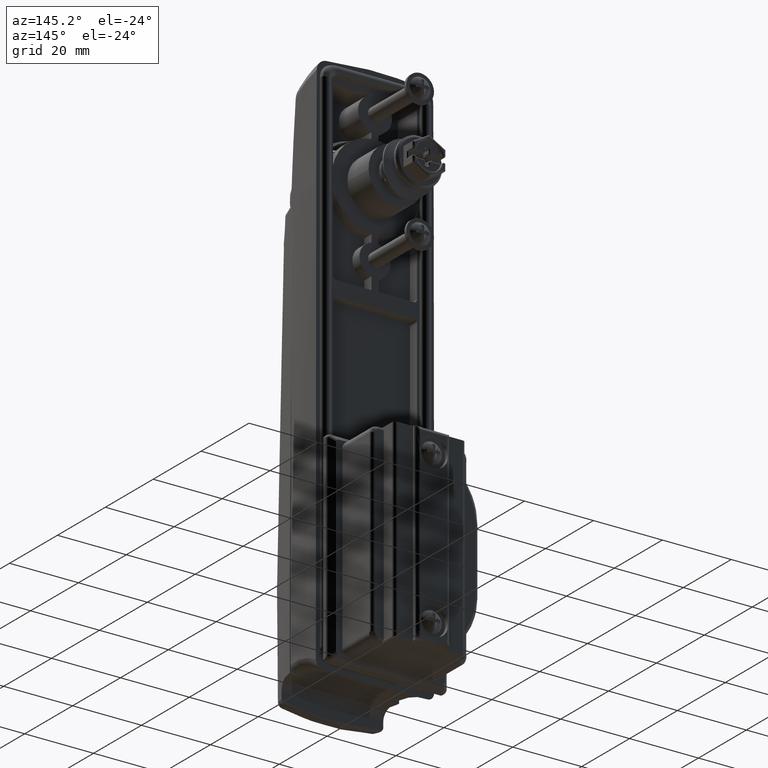
[diagram: clean part render]
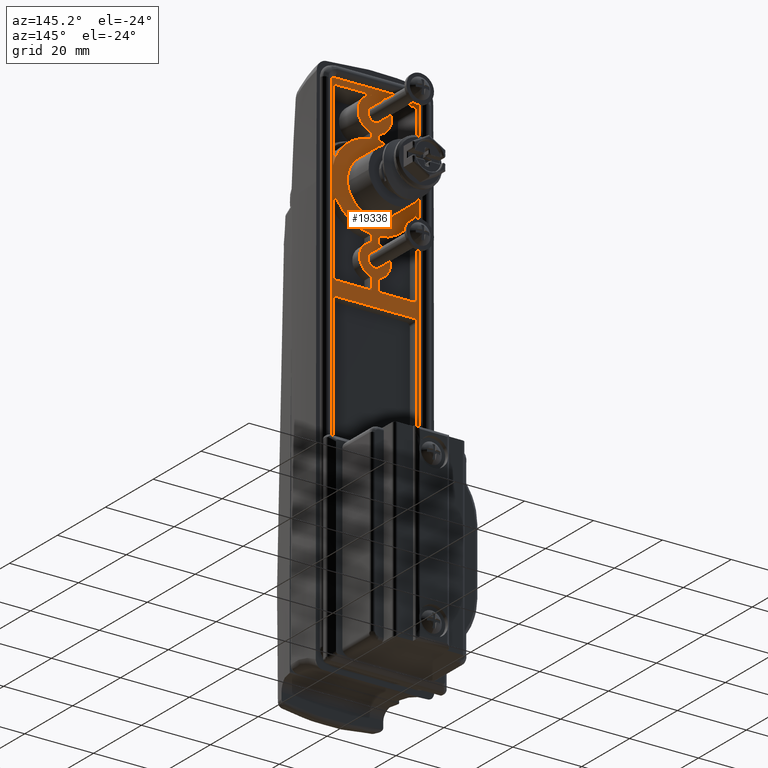
[diagram: same view with one face highlighted and labeled with its STEP entity id]
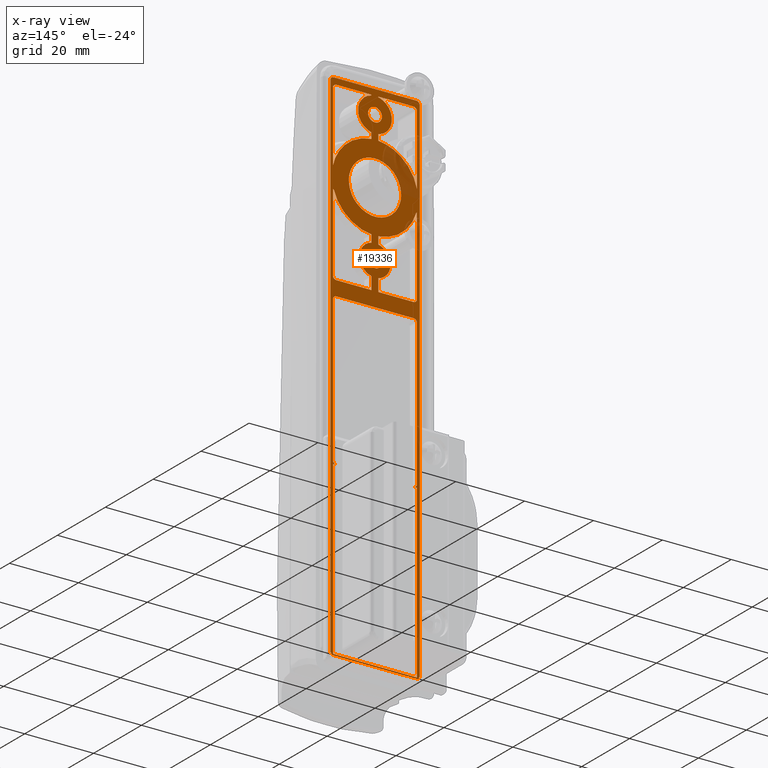
[diagram: x-ray of the same camera — body ghosted, the highlighted face saturated]
A machine part, auxiliary view. The second image highlights one B-rep face of the part: STEP entity #19336.
The next image is the same camera in x-ray: the body ghosted, the highlighted face saturated — about 18% of this face is hidden behind the body in this view.
In plain terms, the highlighted face is a freeform B-spline surface patch.
Its self-contained STEP definition (entity closure, byte-faithful):
#11454=CARTESIAN_POINT('',(3.747003E-016,5.326909944000573,5.420703870209787));
#11455=VERTEX_POINT('',#11454);
#11461=CARTESIAN_POINT('',(0.0,-7.600000000000000,0.0));
#11462=VERTEX_POINT('',#11461);
#11463=CARTESIAN_POINT('',(3.747003E-016,5.326909944000573,5.420703870209787));
#11464=CARTESIAN_POINT('',(0.0,3.109241710582899,7.600000000000001));
#11465=CARTESIAN_POINT('',(0.0,0.0,7.600000000000000));
#11466=CARTESIAN_POINT('',(0.0,-7.600000000000000,7.600000000000000));
#11467=CARTESIAN_POINT('',(0.0,-7.600000000000000,0.0));
#11475=(BOUNDED_CURVE()B_SPLINE_CURVE(2,(#11463,#11464,#11465,#11466,#11467),.UNSPECIFIED.,.F.,.U.)B_SPLINE_CURVE_WITH_KNOTS((3,2,3),(0.126316770525920,0.250000000000000,0.500000000000000),.UNSPECIFIED.)CURVE()GEOMETRIC_REPRESENTATION_ITEM()RATIONAL_B_SPLINE_CURVE((0.853569641570771,0.855096083224375,1.0,0.707106781186547,1.0))REPRESENTATION_ITEM(''));
#11476=EDGE_CURVE('',#11455,#11462,#11475,.T.);
#11478=CARTESIAN_POINT('',(3.747003E-016,-5.326909944000574,-5.420703870209785));
#11479=VERTEX_POINT('',#11478);
#11480=CARTESIAN_POINT('',(0.0,-7.600000000000000,0.0));
#11481=CARTESIAN_POINT('',(0.0,-7.600000000000000,-3.186944876390533));
#11482=CARTESIAN_POINT('',(0.0,-5.326909944000596,-5.420703870209807));
#11490=(BOUNDED_CURVE()B_SPLINE_CURVE(2,(#11480,#11481,#11482),.UNSPECIFIED.,.F.,.U.)B_SPLINE_CURVE_WITH_KNOTS((3,3),(0.500000000000000,0.626316770525920),.UNSPECIFIED.)CURVE()GEOMETRIC_REPRESENTATION_ITEM()RATIONAL_B_SPLINE_CURVE((1.0,0.852010697962173,0.853569641570771))REPRESENTATION_ITEM(''));
#11491=EDGE_CURVE('',#11462,#11479,#11490,.T.);
#11567=CARTESIAN_POINT('',(0.0,7.600000000000000,0.0));
#11568=VERTEX_POINT('',#11567);
#11569=CARTESIAN_POINT('',(3.747003E-016,-5.326909944000574,-5.420703870209785));
#11570=CARTESIAN_POINT('',(0.0,-3.109241710582900,-7.600000000000001));
#11571=CARTESIAN_POINT('',(0.0,0.0,-7.600000000000000));
#11572=CARTESIAN_POINT('',(0.0,7.600000000000000,-7.600000000000000));
#11573=CARTESIAN_POINT('',(0.0,7.600000000000000,0.0));
#11581=(BOUNDED_CURVE()B_SPLINE_CURVE(2,(#11569,#11570,#11571,#11572,#11573),.UNSPECIFIED.,.F.,.U.)B_SPLINE_CURVE_WITH_KNOTS((3,2,3),(0.626316770525920,0.750000000000000,1.0),.UNSPECIFIED.)CURVE()GEOMETRIC_REPRESENTATION_ITEM()RATIONAL_B_SPLINE_CURVE((0.853569641570771,0.855096083224375,1.0,0.707106781186547,1.0))REPRESENTATION_ITEM(''));
#11582=EDGE_CURVE('',#11479,#11568,#11581,.T.);
#11584=CARTESIAN_POINT('',(0.0,7.600000000000000,0.0));
#11585=CARTESIAN_POINT('',(0.0,7.599999999999999,3.186944876390533));
#11586=CARTESIAN_POINT('',(0.0,5.326909944000595,5.420703870209807));
#11594=(BOUNDED_CURVE()B_SPLINE_CURVE(2,(#11584,#11585,#11586),.UNSPECIFIED.,.F.,.U.)B_SPLINE_CURVE_WITH_KNOTS((3,3),(0.0,0.126316770525920),.UNSPECIFIED.)CURVE()GEOMETRIC_REPRESENTATION_ITEM()RATIONAL_B_SPLINE_CURVE((1.0,0.852010697962173,0.853569641570771))REPRESENTATION_ITEM(''));
#11595=EDGE_CURVE('',#11568,#11455,#11594,.T.);
#12017=CARTESIAN_POINT('',(0.000000084971916,-1.993834667375058,19.156919095066069));
#12018=VERTEX_POINT('',#12017);
#12024=CARTESIAN_POINT('',(0.000000083740410,0.0,17.000000902451600));
#12025=VERTEX_POINT('',#12024);
#12026=CARTESIAN_POINT('',(0.000000084971917,-1.993834667375059,19.156919095066062));
#12027=CARTESIAN_POINT('',(0.000000084927189,-2.000000000000000,19.078581117049016));
#12028=CARTESIAN_POINT('',(0.000000084882323,-2.0,19.000000902451600));
#12029=CARTESIAN_POINT('',(0.000000083740410,-2.000000000000000,17.000000902451593));
#12030=CARTESIAN_POINT('',(0.000000083740410,0.0,17.000000902451600));
#12038=(BOUNDED_CURVE()B_SPLINE_CURVE(2,(#12026,#12027,#12028,#12029,#12030),.UNSPECIFIED.,.F.,.U.)B_SPLINE_CURVE_WITH_KNOTS((3,2,3),(0.736331300533139,0.750000000000000,1.0),.UNSPECIFIED.)CURVE()GEOMETRIC_REPRESENTATION_ITEM()RATIONAL_B_SPLINE_CURVE((0.969723355963899,0.983986122464629,1.0,0.707106781186548,1.0))REPRESENTATION_ITEM(''));
#12039=EDGE_CURVE('',#12018,#12025,#12038,.T.);
#12041=CARTESIAN_POINT('',(0.000000084792730,1.993834667375058,18.843082709837141));
#12042=VERTEX_POINT('',#12041);
#12043=CARTESIAN_POINT('',(0.000000083740410,0.0,17.000000902451600));
#12044=CARTESIAN_POINT('',(0.000000083740410,1.848780982238623,17.000000902451593));
#12045=CARTESIAN_POINT('',(0.000000084792730,1.993834667375059,18.843082709837148));
#12053=(BOUNDED_CURVE()B_SPLINE_CURVE(2,(#12043,#12044,#12045),.UNSPECIFIED.,.F.,.U.)B_SPLINE_CURVE_WITH_KNOTS((3,3),(0.0,0.236331300533139),.UNSPECIFIED.)CURVE()GEOMETRIC_REPRESENTATION_ITEM()RATIONAL_B_SPLINE_CURVE((1.0,0.723120658721918,0.969723355963900))REPRESENTATION_ITEM(''));
#12054=EDGE_CURVE('',#12025,#12042,#12053,.T.);
#12100=CARTESIAN_POINT('',(0.000000086024237,0.0,21.000000902451600));
#12101=VERTEX_POINT('',#12100);
#12102=CARTESIAN_POINT('',(0.000000084792730,1.993834667375058,18.843082709837137));
#12103=CARTESIAN_POINT('',(0.000000084837457,2.000000000000000,18.921420687854187));
#12104=CARTESIAN_POINT('',(0.000000084882323,2.0,19.000000902451600));
#12105=CARTESIAN_POINT('',(0.000000086024237,2.000000000000000,21.000000902451607));
#12106=CARTESIAN_POINT('',(0.000000086024237,0.0,21.000000902451600));
#12114=(BOUNDED_CURVE()B_SPLINE_CURVE(2,(#12102,#12103,#12104,#12105,#12106),.UNSPECIFIED.,.F.,.U.)B_SPLINE_CURVE_WITH_KNOTS((3,2,3),(0.236331300533139,0.250000000000000,0.500000000000000),.UNSPECIFIED.)CURVE()GEOMETRIC_REPRESENTATION_ITEM()RATIONAL_B_SPLINE_CURVE((0.969723355963900,0.983986122464629,1.0,0.707106781186548,1.0))REPRESENTATION_ITEM(''));
#12115=EDGE_CURVE('',#12042,#12101,#12114,.T.);
#12117=CARTESIAN_POINT('',(0.000000086024237,0.0,21.000000902451600));
#12118=CARTESIAN_POINT('',(0.000000086024237,-1.848780982238621,21.000000902451610));
#12119=CARTESIAN_POINT('',(0.000000084971917,-1.993834667375058,19.156919095066069));
#12127=(BOUNDED_CURVE()B_SPLINE_CURVE(2,(#12117,#12118,#12119),.UNSPECIFIED.,.F.,.U.)B_SPLINE_CURVE_WITH_KNOTS((3,3),(0.500000000000000,0.736331300533139),.UNSPECIFIED.)CURVE()GEOMETRIC_REPRESENTATION_ITEM()RATIONAL_B_SPLINE_CURVE((1.0,0.723120658721918,0.969723355963899))REPRESENTATION_ITEM(''));
#12128=EDGE_CURVE('',#12101,#12018,#12127,.T.);
#12199=CARTESIAN_POINT('',(0.000000063275495,-1.993834667375058,-18.843080904933991));
#12200=VERTEX_POINT('',#12199);
#12206=CARTESIAN_POINT('',(0.000000062043987,0.0,-20.999999097548450));
#12207=VERTEX_POINT('',#12206);
#12208=CARTESIAN_POINT('',(0.000000063275494,-1.993834667375059,-18.843080904933991));
#12209=CARTESIAN_POINT('',(0.000000063230767,-2.0,-18.921418882951034));
#12210=CARTESIAN_POINT('',(0.000000063185901,-2.0,-18.999999097548450));
#12211=CARTESIAN_POINT('',(0.000000062043987,-2.000000000000000,-20.999999097548450));
#12212=CARTESIAN_POINT('',(0.000000062043987,0.0,-20.999999097548450));
#12220=(BOUNDED_CURVE()B_SPLINE_CURVE(2,(#12208,#12209,#12210,#12211,#12212),.UNSPECIFIED.,.F.,.U.)B_SPLINE_CURVE_WITH_KNOTS((3,2,3),(0.736331300533139,0.750000000000000,1.0),.UNSPECIFIED.)CURVE()GEOMETRIC_REPRESENTATION_ITEM()RATIONAL_B_SPLINE_CURVE((0.969723355963899,0.983986122464629,1.0,0.707106781186548,1.0))REPRESENTATION_ITEM(''));
#12221=EDGE_CURVE('',#12200,#12207,#12220,.T.);
#12223=CARTESIAN_POINT('',(0.000000063096307,1.993834667375058,-19.156917290162919));
#12224=VERTEX_POINT('',#12223);
#12225=CARTESIAN_POINT('',(0.000000062043987,0.0,-20.999999097548450));
#12226=CARTESIAN_POINT('',(0.000000062043987,1.848780982238621,-20.999999097548454));
#12227=CARTESIAN_POINT('',(0.000000063096307,1.993834667375058,-19.156917290162909));
#12235=(BOUNDED_CURVE()B_SPLINE_CURVE(2,(#12225,#12226,#12227),.UNSPECIFIED.,.F.,.U.)B_SPLINE_CURVE_WITH_KNOTS((3,3),(0.0,0.236331300533139),.UNSPECIFIED.)CURVE()GEOMETRIC_REPRESENTATION_ITEM()RATIONAL_B_SPLINE_CURVE((1.0,0.723120658721918,0.969723355963899))REPRESENTATION_ITEM(''));
#12236=EDGE_CURVE('',#12207,#12224,#12235,.T.);
#12282=CARTESIAN_POINT('',(0.000000064327815,0.0,-16.999999097548450));
#12283=VERTEX_POINT('',#12282);
#12284=CARTESIAN_POINT('',(0.000000063096307,1.993834667375058,-19.156917290162909));
#12285=CARTESIAN_POINT('',(0.000000063141035,2.000000000000000,-19.078579312145862));
#12286=CARTESIAN_POINT('',(0.000000063185901,2.0,-18.999999097548450));
#12287=CARTESIAN_POINT('',(0.000000064327815,2.000000000000000,-16.999999097548454));
#12288=CARTESIAN_POINT('',(0.000000064327815,0.0,-16.999999097548450));
#12296=(BOUNDED_CURVE()B_SPLINE_CURVE(2,(#12284,#12285,#12286,#12287,#12288),.UNSPECIFIED.,.F.,.U.)B_SPLINE_CURVE_WITH_KNOTS((3,2,3),(0.236331300533139,0.250000000000000,0.500000000000000),.UNSPECIFIED.)CURVE()GEOMETRIC_REPRESENTATION_ITEM()RATIONAL_B_SPLINE_CURVE((0.969723355963899,0.983986122464629,1.0,0.707106781186548,1.0))REPRESENTATION_ITEM(''));
#12297=EDGE_CURVE('',#12224,#12283,#12296,.T.);
#12299=CARTESIAN_POINT('',(0.000000064327815,0.0,-16.999999097548450));
#12300=CARTESIAN_POINT('',(0.000000064327815,-1.848780982238621,-16.999999097548457));
#12301=CARTESIAN_POINT('',(0.000000063275494,-1.993834667375058,-18.843080904933988));
#12309=(BOUNDED_CURVE()B_SPLINE_CURVE(2,(#12299,#12300,#12301),.UNSPECIFIED.,.F.,.U.)B_SPLINE_CURVE_WITH_KNOTS((3,3),(0.500000000000000,0.736331300533139),.UNSPECIFIED.)CURVE()GEOMETRIC_REPRESENTATION_ITEM()RATIONAL_B_SPLINE_CURVE((1.0,0.723120658721918,0.969723355963899))REPRESENTATION_ITEM(''));
#12310=EDGE_CURVE('',#12283,#12200,#12309,.T.);
#15890=CARTESIAN_POINT('',(-1.110223E-013,1.000120185797414,24.000003627503851));
#15891=VERTEX_POINT('',#15890);
#15892=CARTESIAN_POINT('',(-1.110223E-013,1.000120185797414,23.800034947185399));
#15893=VERTEX_POINT('',#15892);
#15894=CARTESIAN_POINT('',(-1.110223E-013,1.000120185797414,24.000003627503851));
#15895=CARTESIAN_POINT('',(-1.110223E-013,1.000120185797414,23.800034947185399));
#15896=QUASI_UNIFORM_CURVE('',1,(#15894,#15895),.UNSPECIFIED.,.F.,.U.);
#15897=EDGE_CURVE('',#15891,#15893,#15896,.T.);
#15926=CARTESIAN_POINT('',(-1.110223E-013,11.200120670271421,24.000003877504199));
#15927=VERTEX_POINT('',#15926);
#15928=CARTESIAN_POINT('',(-1.110223E-013,11.200120670271421,24.000003877504199));
#15929=CARTESIAN_POINT('',(-1.110223E-013,1.000120185797414,24.000003627503851));
#15930=QUASI_UNIFORM_CURVE('',1,(#15928,#15929),.UNSPECIFIED.,.F.,.U.);
#15931=EDGE_CURVE('',#15927,#15891,#15930,.T.);
#15963=CARTESIAN_POINT('',(-1.110223E-013,12.200120717768860,23.014896032761349));
#15964=VERTEX_POINT('',#15963);
#15965=CARTESIAN_POINT('',(-1.110223E-013,12.200120717768860,23.014896032761349));
#15966=CARTESIAN_POINT('',(-1.110223E-013,12.184664400456883,23.999318669849789));
#15967=CARTESIAN_POINT('',(-1.110223E-013,11.200120670272190,24.000003878604229));
#15975=(BOUNDED_CURVE()B_SPLINE_CURVE(2,(#15965,#15966,#15967),.UNSPECIFIED.,.F.,.U.)CURVE()GEOMETRIC_REPRESENTATION_ITEM()QUASI_UNIFORM_CURVE()RATIONAL_B_SPLINE_CURVE((1.0,0.712879666211485,1.0))REPRESENTATION_ITEM(''));
#15976=EDGE_CURVE('',#15964,#15927,#15975,.T.);
#16007=CARTESIAN_POINT('',(0.000000087737037,-1.000120185797414,24.000003627503851));
#16008=VERTEX_POINT('',#16007);
#16009=CARTESIAN_POINT('',(-1.110223E-013,-11.200120670272099,24.000003878604002));
#16010=VERTEX_POINT('',#16009);
#16011=CARTESIAN_POINT('',(0.000000087737037,-1.000120185797414,24.000003627503851));
#16012=CARTESIAN_POINT('',(-1.110223E-013,-11.200120670272099,24.000003878604002));
#16013=QUASI_UNIFORM_CURVE('',1,(#16011,#16012),.UNSPECIFIED.,.F.,.U.);
#16014=EDGE_CURVE('',#16008,#16010,#16013,.T.);
#16043=CARTESIAN_POINT('',(-1.110223E-013,-1.000123354566898,23.800034947186351));
#16044=VERTEX_POINT('',#16043);
#16045=CARTESIAN_POINT('',(-1.110223E-013,-1.000123354566898,23.800034947186351));
#16046=CARTESIAN_POINT('',(0.000000087737037,-1.000120185797414,24.000003627503851));
#16047=QUASI_UNIFORM_CURVE('',1,(#16045,#16046),.UNSPECIFIED.,.F.,.U.);
#16048=EDGE_CURVE('',#16044,#16008,#16047,.T.);
#16080=CARTESIAN_POINT('',(-1.110223E-013,-12.200120717768860,23.014896032757449));
#16081=VERTEX_POINT('',#16080);
#16082=CARTESIAN_POINT('',(-1.110223E-013,-11.200120670272099,24.000003878604030));
#16083=CARTESIAN_POINT('',(-1.110223E-013,-12.184664400460424,23.999318669849590));
#16084=CARTESIAN_POINT('',(-1.110223E-013,-12.200120717768870,23.014896032757449));
#16092=(BOUNDED_CURVE()B_SPLINE_CURVE(2,(#16082,#16083,#16084),.UNSPECIFIED.,.F.,.U.)CURVE()GEOMETRIC_REPRESENTATION_ITEM()QUASI_UNIFORM_CURVE()RATIONAL_B_SPLINE_CURVE((1.0,0.712879666210193,1.0))REPRESENTATION_ITEM(''));
#16093=EDGE_CURVE('',#16010,#16081,#16092,.T.);
#16216=CARTESIAN_POINT('',(0.0,-12.200120958050441,-25.999998497368502));
#16217=VERTEX_POINT('',#16216);
#16218=CARTESIAN_POINT('',(0.000000072035722,-12.200120717768860,-3.499997428675895));
#16219=VERTEX_POINT('',#16218);
#16220=CARTESIAN_POINT('',(0.0,-12.200120958050441,-25.999998497368502));
#16221=CARTESIAN_POINT('',(0.000000072035722,-12.200120717768860,-3.499997428675895));
#16222=QUASI_UNIFORM_CURVE('',1,(#16220,#16221),.UNSPECIFIED.,.F.,.U.);
#16223=EDGE_CURVE('',#16217,#16219,#16222,.T.);
#16244=CARTESIAN_POINT('',(0.0,-12.000212616159621,-3.499997428675895));
#16245=VERTEX_POINT('',#16244);
#16246=CARTESIAN_POINT('',(0.000000072035722,-12.200120717768860,-3.499997428675895));
#16247=CARTESIAN_POINT('',(0.0,-12.000212616159621,-3.499997428675895));
#16248=QUASI_UNIFORM_CURVE('',1,(#16246,#16247),.UNSPECIFIED.,.F.,.U.);
#16249=EDGE_CURVE('',#16219,#16245,#16248,.T.);
#16275=CARTESIAN_POINT('',(0.0,-1.000120196623366,-12.460003505695200));
#16276=VERTEX_POINT('',#16275);
#16277=CARTESIAN_POINT('',(0.0,-12.000212616159621,-3.499997428675895));
#16278=CARTESIAN_POINT('',(0.0,-9.587915476922591,-11.770793113107334));
#16279=CARTESIAN_POINT('',(0.0,-1.000120196623366,-12.460003505695189));
#16287=(BOUNDED_CURVE()B_SPLINE_CURVE(2,(#16277,#16278,#16279),.UNSPECIFIED.,.F.,.U.)CURVE()GEOMETRIC_REPRESENTATION_ITEM()QUASI_UNIFORM_CURVE()RATIONAL_B_SPLINE_CURVE((1.0,0.823376659458550,1.0))REPRESENTATION_ITEM(''));
#16288=EDGE_CURVE('',#16245,#16276,#16287,.T.);
#16305=CARTESIAN_POINT('',(0.0,-1.000120185797300,-14.612360766254200));
#16306=VERTEX_POINT('',#16305);
#16307=CARTESIAN_POINT('',(0.0,-1.000120196623366,-12.460003505695200));
#16308=CARTESIAN_POINT('',(0.0,-1.000120185797300,-14.612360766254200));
#16309=QUASI_UNIFORM_CURVE('',1,(#16307,#16308),.UNSPECIFIED.,.F.,.U.);
#16310=EDGE_CURVE('',#16276,#16306,#16309,.T.);
#16340=CARTESIAN_POINT('',(0.0,-1.000120185797408,-23.387480229701598));
#16341=VERTEX_POINT('',#16340);
#16342=CARTESIAN_POINT('',(0.0,-1.000120185797300,-14.612360766254200));
#16343=CARTESIAN_POINT('',(0.0,-1.585098028271931,-14.745000428749581));
#16344=CARTESIAN_POINT('',(0.0,-2.523685752809362,-15.169848363969541));
#16345=CARTESIAN_POINT('',(0.0,-3.446785887762418,-16.048566690599650));
#16346=CARTESIAN_POINT('',(0.0,-3.957124846726660,-16.812391834861341));
#16347=CARTESIAN_POINT('',(0.0,-4.358561295001432,-17.708619404686878));
#16348=CARTESIAN_POINT('',(0.0,-4.534819109924787,-18.683447540593750));
#16349=CARTESIAN_POINT('',(0.0,-4.472589330498501,-19.663497108372582));
#16350=CARTESIAN_POINT('',(0.0,-4.269260710867047,-20.526799477293409));
#16351=CARTESIAN_POINT('',(0.0,-3.847431894676324,-21.418372715446921));
#16352=CARTESIAN_POINT('',(0.0,-3.084610736637999,-22.354529651479460));
#16353=CARTESIAN_POINT('',(0.0,-2.117667814258463,-23.035081034298770));
#16354=CARTESIAN_POINT('',(0.0,-1.338644211141292,-23.310373623834970));
#16355=CARTESIAN_POINT('',(0.0,-1.000120185797408,-23.387480229701598));
#16356=B_SPLINE_CURVE_WITH_KNOTS('',3,(#16342,#16343,#16344,#16345,#16346,#16347,#16348,#16349,#16350,#16351,#16352,#16353,#16354,#16355),.UNSPECIFIED.,.F.,.U.,(4,1,1,1,1,1,1,1,1,1,1,4),(0.000000285138805,1.799206702045868,3.030243605382664,3.787832187280108,4.545373885321881,5.965821425480653,6.723287031334457,7.480896313976809,8.617245572034557,9.658914659867804,11.079338285529049,12.120964346674461),.UNSPECIFIED.);
#16357=EDGE_CURVE('',#16306,#16341,#16356,.T.);
#16374=CARTESIAN_POINT('',(0.0,-1.000120185797300,-26.999998294865900));
#16375=VERTEX_POINT('',#16374);
#16376=CARTESIAN_POINT('',(0.0,-1.000120185797408,-23.387480229701598));
#16377=CARTESIAN_POINT('',(0.0,-1.000120185797300,-26.999998294865900));
#16378=QUASI_UNIFORM_CURVE('',1,(#16376,#16377),.UNSPECIFIED.,.F.,.U.);
#16379=EDGE_CURVE('',#16341,#16375,#16378,.T.);
#16396=CARTESIAN_POINT('',(0.0,-11.200120670271300,-26.999998544866049));
#16397=VERTEX_POINT('',#16396);
#16398=CARTESIAN_POINT('',(0.0,-1.000120185797300,-26.999998294865900));
#16399=CARTESIAN_POINT('',(0.0,-11.200120670271300,-26.999998544866049));
#16400=QUASI_UNIFORM_CURVE('',1,(#16398,#16399),.UNSPECIFIED.,.F.,.U.);
#16401=EDGE_CURVE('',#16375,#16397,#16400,.T.);
#16427=CARTESIAN_POINT('',(0.0,-12.200120958050420,-25.999998497368502));
#16428=CARTESIAN_POINT('',(0.0,-12.200120377959484,-26.999998205056546));
#16429=CARTESIAN_POINT('',(0.0,-11.200120670271440,-26.999998785147540));
#16437=(BOUNDED_CURVE()B_SPLINE_CURVE(2,(#16427,#16428,#16429),.UNSPECIFIED.,.F.,.U.)CURVE()GEOMETRIC_REPRESENTATION_ITEM()QUASI_UNIFORM_CURVE()RATIONAL_B_SPLINE_CURVE((1.0,0.707107191372799,1.0))REPRESENTATION_ITEM(''));
#16438=EDGE_CURVE('',#16217,#16397,#16437,.T.);
#16543=CARTESIAN_POINT('',(0.000000059189193,12.199880441169061,-25.999998497368850));
#16544=VERTEX_POINT('',#16543);
#16545=CARTESIAN_POINT('',(0.0,12.199880441169061,-3.499997678676040));
#16546=VERTEX_POINT('',#16545);
#16547=CARTESIAN_POINT('',(0.000000059189193,12.199880441169061,-25.999998497368850));
#16548=CARTESIAN_POINT('',(0.0,12.199880441169061,-3.499997678676040));
#16549=QUASI_UNIFORM_CURVE('',1,(#16547,#16548),.UNSPECIFIED.,.F.,.U.);
#16550=EDGE_CURVE('',#16544,#16546,#16549,.T.);
#16580=CARTESIAN_POINT('',(0.0,11.199880393671499,-26.999998544866049));
#16581=VERTEX_POINT('',#16580);
#16582=CARTESIAN_POINT('',(0.0,11.199880393671499,-26.999998544866049));
#16583=CARTESIAN_POINT('',(0.0,12.199880101359193,-26.999998205056553));
#16584=CARTESIAN_POINT('',(0.0,12.199880681450621,-25.999998497368988));
#16592=(BOUNDED_CURVE()B_SPLINE_CURVE(2,(#16582,#16583,#16584),.UNSPECIFIED.,.F.,.U.)CURVE()GEOMETRIC_REPRESENTATION_ITEM()QUASI_UNIFORM_CURVE()RATIONAL_B_SPLINE_CURVE((1.0,0.707107191372979,1.0))REPRESENTATION_ITEM(''));
#16593=EDGE_CURVE('',#16581,#16544,#16592,.T.);
#16610=CARTESIAN_POINT('',(0.0,0.999879909197489,-26.999998544866049));
#16611=VERTEX_POINT('',#16610);
#16612=CARTESIAN_POINT('',(0.0,0.999879909197489,-26.999998544866049));
#16613=CARTESIAN_POINT('',(0.0,11.199880393671499,-26.999998544866049));
#16614=QUASI_UNIFORM_CURVE('',1,(#16612,#16613),.UNSPECIFIED.,.F.,.U.);
#16615=EDGE_CURVE('',#16611,#16581,#16614,.T.);
#16632=CARTESIAN_POINT('',(0.0,0.999881389108586,-23.387480229702049));
#16633=VERTEX_POINT('',#16632);
#16634=CARTESIAN_POINT('',(0.0,0.999881389108586,-23.387480229702049));
#16635=CARTESIAN_POINT('',(0.0,0.999879909197489,-26.999998544866049));
#16636=QUASI_UNIFORM_CURVE('',1,(#16634,#16635),.UNSPECIFIED.,.F.,.U.);
#16637=EDGE_CURVE('',#16633,#16611,#16636,.T.);
#16667=CARTESIAN_POINT('',(0.0,0.999879909197489,-14.612360766444739));
#16668=VERTEX_POINT('',#16667);
#16669=CARTESIAN_POINT('',(0.0,0.999881389108586,-23.387480229702049));
#16670=CARTESIAN_POINT('',(0.0,1.584886189049107,-23.254882637277611));
#16671=CARTESIAN_POINT('',(0.0,2.523417112001130,-22.829968169634689));
#16672=CARTESIAN_POINT('',(0.0,3.492694415123265,-21.907335466341070));
#16673=CARTESIAN_POINT('',(0.0,4.124642578232119,-20.917430538352530));
#16674=CARTESIAN_POINT('',(0.0,4.451544857420538,-19.916559416342931));
#16675=CARTESIAN_POINT('',(0.0,4.528342861071998,-18.873058161504400));
#16676=CARTESIAN_POINT('',(0.0,4.396612515365672,-17.833981026622109));
#16677=CARTESIAN_POINT('',(0.0,3.936631635864858,-16.677666719477099));
#16678=CARTESIAN_POINT('',(0.0,3.169207488544404,-15.736350046710109));
#16679=CARTESIAN_POINT('',(0.0,2.173115371080729,-15.003565656959591));
#16680=CARTESIAN_POINT('',(0.0,1.461587137692445,-14.717301609117110));
#16681=CARTESIAN_POINT('',(0.0,0.999879909197489,-14.612360766444739));
#16682=B_SPLINE_CURVE_WITH_KNOTS('',3,(#16669,#16670,#16671,#16672,#16673,#16674,#16675,#16676,#16677,#16678,#16679,#16680,#16681),.UNSPECIFIED.,.F.,.U.,(4,1,1,1,1,1,1,1,1,1,4),(0.000000285134163,1.799206511172180,3.030243283950224,3.977202129001061,5.302972769491920,6.155144369792367,7.102059814908463,8.427834534427323,9.848292423474799,10.700599900097631,12.120963060960939),.UNSPECIFIED.);
#16683=EDGE_CURVE('',#16633,#16668,#16682,.T.);
#16700=CARTESIAN_POINT('',(0.0,0.999881600867987,-12.460003370724660));
#16701=VERTEX_POINT('',#16700);
#16702=CARTESIAN_POINT('',(0.0,0.999881600867987,-12.460003370724660));
#16703=CARTESIAN_POINT('',(0.0,0.999879909197489,-14.612360766444739));
#16704=QUASI_UNIFORM_CURVE('',1,(#16702,#16703),.UNSPECIFIED.,.F.,.U.);
#16705=EDGE_CURVE('',#16701,#16668,#16704,.T.);
#16731=CARTESIAN_POINT('',(0.0,11.999972339535841,-3.499997428676315));
#16732=VERTEX_POINT('',#16731);
#16733=CARTESIAN_POINT('',(0.0,0.999881600867983,-12.460003370724669));
#16734=CARTESIAN_POINT('',(0.0,9.587675548619140,-11.770791919311620));
#16735=CARTESIAN_POINT('',(0.0,11.999972339535850,-3.499997428676320));
#16743=(BOUNDED_CURVE()B_SPLINE_CURVE(2,(#16733,#16734,#16735),.UNSPECIFIED.,.F.,.U.)CURVE()GEOMETRIC_REPRESENTATION_ITEM()QUASI_UNIFORM_CURVE()RATIONAL_B_SPLINE_CURVE((1.0,0.823376697725791,1.0))REPRESENTATION_ITEM(''));
#16744=EDGE_CURVE('',#16701,#16732,#16743,.T.);
#16761=CARTESIAN_POINT('',(0.0,12.199880441169061,-3.499997678676040));
#16762=CARTESIAN_POINT('',(0.0,11.999972339535841,-3.499997428676315));
#16763=QUASI_UNIFORM_CURVE('',1,(#16761,#16762),.UNSPECIFIED.,.F.,.U.);
#16764=EDGE_CURVE('',#16546,#16732,#16763,.T.);
#16882=CARTESIAN_POINT('',(-2.220446E-013,12.199880441169061,-124.750005925306990));
#16883=VERTEX_POINT('',#16882);
#16884=CARTESIAN_POINT('',(-2.220446E-013,-12.200120717768860,-124.750005925306990));
#16885=VERTEX_POINT('',#16884);
#16886=CARTESIAN_POINT('',(-2.220446E-013,12.199880441169061,-124.750005925306990));
#16887=CARTESIAN_POINT('',(-2.220446E-013,-12.200120717768860,-124.750005925306990));
#16888=QUASI_UNIFORM_CURVE('',1,(#16886,#16887),.UNSPECIFIED.,.F.,.U.);
#16889=EDGE_CURVE('',#16883,#16885,#16888,.T.);
#16918=CARTESIAN_POINT('',(-2.220446E-013,12.199880441169061,-75.250003574183197));
#16919=VERTEX_POINT('',#16918);
#16920=CARTESIAN_POINT('',(-2.220446E-013,12.199880441169061,-75.250003574183197));
#16921=CARTESIAN_POINT('',(-2.220446E-013,12.199880441169061,-124.750005925306990));
#16922=QUASI_UNIFORM_CURVE('',1,(#16920,#16921),.UNSPECIFIED.,.F.,.U.);
#16923=EDGE_CURVE('',#16919,#16883,#16922,.T.);
#16946=CARTESIAN_POINT('',(-2.220446E-013,-12.200120717768860,-75.250003574183197));
#16947=VERTEX_POINT('',#16946);
#16948=CARTESIAN_POINT('',(-2.220446E-013,-12.200120717768860,-124.750005925306990));
#16949=CARTESIAN_POINT('',(-2.220446E-013,-12.200120717768860,-75.250003574183197));
#16950=QUASI_UNIFORM_CURVE('',1,(#16948,#16949),.UNSPECIFIED.,.F.,.U.);
#16951=EDGE_CURVE('',#16885,#16947,#16950,.T.);
#17079=CARTESIAN_POINT('',(0.000000055620619,12.199880441169061,-32.249998746730249));
#17080=VERTEX_POINT('',#17079);
#17081=CARTESIAN_POINT('',(0.000000144937840,11.199880441169061,-31.249998746730249));
#17082=VERTEX_POINT('',#17081);
#17083=CARTESIAN_POINT('',(0.000000055620619,12.199880441169061,-32.249998746730249));
#17084=CARTESIAN_POINT('',(0.000000144937840,12.199880441169059,-31.249998746730249));
#17085=CARTESIAN_POINT('',(0.000000144937840,11.199880441169061,-31.249998746730249));
#17093=(BOUNDED_CURVE()B_SPLINE_CURVE(2,(#17083,#17084,#17085),.UNSPECIFIED.,.F.,.U.)CURVE()GEOMETRIC_REPRESENTATION_ITEM()QUASI_UNIFORM_CURVE()RATIONAL_B_SPLINE_CURVE((1.0,0.707106781186548,1.0))REPRESENTATION_ITEM(''));
#17094=EDGE_CURVE('',#17080,#17082,#17093,.T.);
#17115=CARTESIAN_POINT('',(0.000000144937840,12.199880441169061,-74.250003574183197));
#17116=VERTEX_POINT('',#17115);
#17117=CARTESIAN_POINT('',(0.000000144937840,12.199880441169061,-74.250003574183197));
#17118=CARTESIAN_POINT('',(0.000000055620619,12.199880441169061,-32.249998746730249));
#17119=QUASI_UNIFORM_CURVE('',1,(#17117,#17118),.UNSPECIFIED.,.F.,.U.);
#17120=EDGE_CURVE('',#17116,#17080,#17119,.T.);
#17146=CARTESIAN_POINT('',(0.000000144937840,11.199880441169061,-75.250003574183197));
#17147=VERTEX_POINT('',#17146);
#17148=CARTESIAN_POINT('',(0.000000144937840,11.199880441169061,-75.250003574183197));
#17149=CARTESIAN_POINT('',(0.000000144937840,12.199880441169059,-75.250003574183197));
#17150=CARTESIAN_POINT('',(0.000000144937840,12.199880441169061,-74.250003574183197));
#17158=(BOUNDED_CURVE()B_SPLINE_CURVE(2,(#17148,#17149,#17150),.UNSPECIFIED.,.F.,.U.)CURVE()GEOMETRIC_REPRESENTATION_ITEM()QUASI_UNIFORM_CURVE()RATIONAL_B_SPLINE_CURVE((1.0,0.707106781186548,1.0))REPRESENTATION_ITEM(''));
#17159=EDGE_CURVE('',#17147,#17116,#17158,.T.);
#17176=CARTESIAN_POINT('',(-1.698908E-013,-11.200120717768860,-75.250003574183197));
#17177=VERTEX_POINT('',#17176);
#17183=CARTESIAN_POINT('',(-2.220446E-013,-12.200120717768860,-75.250003574183197));
#17184=CARTESIAN_POINT('',(-1.698908E-013,-11.200120717768860,-75.250003574183197));
#17185=QUASI_UNIFORM_CURVE('',1,(#17183,#17184),.UNSPECIFIED.,.F.,.U.);
#17186=EDGE_CURVE('',#16947,#17177,#17185,.T.);
#17195=CARTESIAN_POINT('',(0.000000144937840,11.199880441169061,-75.250003574183197));
#17196=CARTESIAN_POINT('',(-2.220446E-013,12.199880441169061,-75.250003574183197));
#17197=QUASI_UNIFORM_CURVE('',1,(#17195,#17196),.UNSPECIFIED.,.F.,.U.);
#17198=EDGE_CURVE('',#17147,#16919,#17197,.T.);
#17219=CARTESIAN_POINT('',(0.000000144937840,-12.200120717768860,-74.250003574183197));
#17220=VERTEX_POINT('',#17219);
#17221=CARTESIAN_POINT('',(0.000000144937840,-12.200120717768860,-74.250003574183197));
#17222=CARTESIAN_POINT('',(0.000000144937840,-12.200120717768861,-75.250003574183197));
#17223=CARTESIAN_POINT('',(0.000000144937840,-11.200120717768860,-75.250003574183197));
#17231=(BOUNDED_CURVE()B_SPLINE_CURVE(2,(#17221,#17222,#17223),.UNSPECIFIED.,.F.,.U.)CURVE()GEOMETRIC_REPRESENTATION_ITEM()QUASI_UNIFORM_CURVE()RATIONAL_B_SPLINE_CURVE((1.0,0.707106781186548,1.0))REPRESENTATION_ITEM(''));
#17232=EDGE_CURVE('',#17220,#17177,#17231,.T.);
#17249=CARTESIAN_POINT('',(0.000000144937840,-12.200120717768860,-32.249998746730249));
#17250=VERTEX_POINT('',#17249);
#17251=CARTESIAN_POINT('',(0.000000144937840,-12.200120717768860,-32.249998746730249));
#17252=CARTESIAN_POINT('',(0.000000144937840,-12.200120717768860,-74.250003574183197));
#17253=QUASI_UNIFORM_CURVE('',1,(#17251,#17252),.UNSPECIFIED.,.F.,.U.);
#17254=EDGE_CURVE('',#17250,#17220,#17253,.T.);
#17280=CARTESIAN_POINT('',(0.000000144937840,-11.200120717768860,-31.249998746730249));
#17281=VERTEX_POINT('',#17280);
#17282=CARTESIAN_POINT('',(0.000000144937840,-11.200120717768860,-31.249998746730249));
#17283=CARTESIAN_POINT('',(0.000000144937840,-12.200120717768861,-31.249998746730249));
#17284=CARTESIAN_POINT('',(0.000000144937840,-12.200120717768860,-32.249998746730249));
#17292=(BOUNDED_CURVE()B_SPLINE_CURVE(2,(#17282,#17283,#17284),.UNSPECIFIED.,.F.,.U.)CURVE()GEOMETRIC_REPRESENTATION_ITEM()QUASI_UNIFORM_CURVE()RATIONAL_B_SPLINE_CURVE((1.0,0.707106781186548,1.0))REPRESENTATION_ITEM(''));
#17293=EDGE_CURVE('',#17281,#17250,#17292,.T.);
#17310=CARTESIAN_POINT('',(0.000000144937840,11.199880441169061,-31.249998746730249));
#17311=CARTESIAN_POINT('',(0.000000144937840,-11.200120717768860,-31.249998746730249));
#17312=QUASI_UNIFORM_CURVE('',1,(#17310,#17311),.UNSPECIFIED.,.F.,.U.);
#17313=EDGE_CURVE('',#17082,#17281,#17312,.T.);
#18425=CARTESIAN_POINT('',(0.000000072469031,-12.021239786847699,25.727551349195650));
#18426=VERTEX_POINT('',#18425);
#18433=CARTESIAN_POINT('',(0.000000088158406,-13.000120755766821,24.738048293428751));
#18434=VERTEX_POINT('',#18433);
#18440=CARTESIAN_POINT('',(0.000000072469031,-12.021239786847699,25.727551349195679));
#18441=CARTESIAN_POINT('',(0.000000072469031,-12.989335533589777,25.706316829865770));
#18442=CARTESIAN_POINT('',(0.000000072469031,-13.000120755766840,24.738048293428751));
#18450=(BOUNDED_CURVE()B_SPLINE_CURVE(2,(#18440,#18441,#18442),.UNSPECIFIED.,.F.,.U.)CURVE()GEOMETRIC_REPRESENTATION_ITEM()QUASI_UNIFORM_CURVE()RATIONAL_B_SPLINE_CURVE((1.0,0.718701252852474,1.0))REPRESENTATION_ITEM(''));
#18451=EDGE_CURVE('',#18426,#18434,#18450,.T.);
#18705=CARTESIAN_POINT('',(0.000000072469031,12.021239787031019,25.727551349192051));
#18706=VERTEX_POINT('',#18705);
#18714=CARTESIAN_POINT('',(0.000000072469031,12.021239787031019,25.727551349192051));
#18715=CARTESIAN_POINT('',(0.000000072469031,-12.021239786847699,25.727551349195650));
#18716=QUASI_UNIFORM_CURVE('',1,(#18714,#18715),.UNSPECIFIED.,.F.,.U.);
#18717=EDGE_CURVE('',#18706,#18426,#18716,.T.);
#18736=CARTESIAN_POINT('',(0.000000072469031,13.000120755766799,24.738048293431049));
#18737=VERTEX_POINT('',#18736);
#18745=CARTESIAN_POINT('',(0.000000072469031,13.000120755766821,24.738048293431049));
#18746=CARTESIAN_POINT('',(0.000000072469031,12.989335533589918,25.706316829688710));
#18747=CARTESIAN_POINT('',(0.000000072469031,12.021239787031019,25.727551349192058));
#18755=(BOUNDED_CURVE()B_SPLINE_CURVE(2,(#18745,#18746,#18747),.UNSPECIFIED.,.F.,.U.)CURVE()GEOMETRIC_REPRESENTATION_ITEM()QUASI_UNIFORM_CURVE()RATIONAL_B_SPLINE_CURVE((1.0,0.718701252916825,1.0))REPRESENTATION_ITEM(''));
#18756=EDGE_CURVE('',#18737,#18706,#18755,.T.);
#18766=CARTESIAN_POINT('',(0.000000072469031,13.000120755770761,-124.071254975315400));
#18767=VERTEX_POINT('',#18766);
#18775=CARTESIAN_POINT('',(0.000000072469031,13.000120755770761,-124.071254975315400));
#18776=CARTESIAN_POINT('',(0.000000072469031,13.000120755766799,24.738048293431049));
#18777=QUASI_UNIFORM_CURVE('',1,(#18775,#18776),.UNSPECIFIED.,.F.,.U.);
#18778=EDGE_CURVE('',#18767,#18737,#18777,.T.);
#18797=CARTESIAN_POINT('',(0.000000072469031,11.977342595051820,-125.060758031435200));
#18798=VERTEX_POINT('',#18797);
#18806=CARTESIAN_POINT('',(0.000000072469031,11.977342595051820,-125.060758031435200));
#18807=CARTESIAN_POINT('',(0.000000072469031,12.125759614756930,-125.064261648854900));
#18808=CARTESIAN_POINT('',(0.000000072469031,12.374027416873870,-125.013339784607100));
#18809=CARTESIAN_POINT('',(0.000000072469031,12.710829066671510,-124.797147263003000));
#18810=CARTESIAN_POINT('',(0.000000072469031,12.939373130971990,-124.482816663909500));
#18811=CARTESIAN_POINT('',(0.000000072469031,12.998775076281150,-124.203172200670000));
#18812=CARTESIAN_POINT('',(0.000000072469031,13.000120755770761,-124.071254975315400));
#18813=B_SPLINE_CURVE_WITH_KNOTS('',3,(#18806,#18807,#18808,#18809,#18810,#18811,#18812),.UNSPECIFIED.,.F.,.U.,(4,1,1,1,4),(0.000000316306932,0.445273231992924,0.742116627261822,1.187370162005494,1.583160110571361),.UNSPECIFIED.);
#18814=EDGE_CURVE('',#18798,#18767,#18813,.T.);
#18824=CARTESIAN_POINT('',(0.000000072469031,-11.977342595063300,-125.060758031431600));
#18825=VERTEX_POINT('',#18824);
#18833=CARTESIAN_POINT('',(0.000000072469031,-11.977342595063300,-125.060758031431600));
#18834=CARTESIAN_POINT('',(0.000000072469031,11.977342595051820,-125.060758031435200));
#18835=QUASI_UNIFORM_CURVE('',1,(#18833,#18834),.UNSPECIFIED.,.F.,.U.);
#18836=EDGE_CURVE('',#18825,#18798,#18835,.T.);
#18855=CARTESIAN_POINT('',(0.000000072469031,-13.000120755766719,-124.071254975675000));
#18856=VERTEX_POINT('',#18855);
#18864=CARTESIAN_POINT('',(0.000000072469031,-13.000120755766719,-124.071254975675000));
#18865=CARTESIAN_POINT('',(0.000000072469031,-12.998789074998690,-124.203186923212400));
#18866=CARTESIAN_POINT('',(0.000000072469031,-12.946266405710940,-124.449828165102600));
#18867=CARTESIAN_POINT('',(0.000000072469031,-12.726419281299631,-124.786144339979400));
#18868=CARTESIAN_POINT('',(0.000000072469031,-12.390680763201980,-125.013654732694700));
#18869=CARTESIAN_POINT('',(0.000000072469031,-12.109233340339790,-125.063773966761000));
#18870=CARTESIAN_POINT('',(0.000000072469031,-11.977342595063300,-125.060758031431600));
#18871=B_SPLINE_CURVE_WITH_KNOTS('',3,(#18864,#18865,#18866,#18867,#18868,#18869,#18870),.UNSPECIFIED.,.F.,.U.,(4,1,1,1,4),(0.000000316304318,0.395790264777979,0.742116627085523,1.187370161725075,1.583160110198793),.UNSPECIFIED.);
#18872=EDGE_CURVE('',#18856,#18825,#18871,.T.);
#18885=CARTESIAN_POINT('',(0.000000088158406,-13.000120755766821,24.738048293428751));
#18886=CARTESIAN_POINT('',(0.000000072469031,-13.000120755766719,-124.071254975675000));
#18887=QUASI_UNIFORM_CURVE('',1,(#18885,#18886),.UNSPECIFIED.,.F.,.U.);
#18888=EDGE_CURVE('',#18434,#18856,#18887,.T.);
#19165=CARTESIAN_POINT('',(0.000000093023768,-14.298832768874609,33.259427110501157));
#19166=CARTESIAN_POINT('',(-1.670606E-009,-14.298832768874609,-132.592637837198310));
#19167=CARTESIAN_POINT('',(0.000000093023769,14.298833466259371,33.259427110501157));
#19168=CARTESIAN_POINT('',(-1.670605E-009,14.298833466259371,-132.592637837198310));
#19169=B_SPLINE_SURFACE_WITH_KNOTS('',1,1,((#19165,#19167),(#19166,#19168)),.UNSPECIFIED.,.F.,.F.,.U.,(2,2),(2,2),(0.0,165.852064947699490),(0.0,28.597666235133978),.UNSPECIFIED.);
#19170=ORIENTED_EDGE('',*,*,#18451,.T.);
#19171=ORIENTED_EDGE('',*,*,#18888,.T.);
#19172=ORIENTED_EDGE('',*,*,#18872,.T.);
#19173=ORIENTED_EDGE('',*,*,#18836,.T.);
#19174=ORIENTED_EDGE('',*,*,#18814,.T.);
#19175=ORIENTED_EDGE('',*,*,#18778,.T.);
#19176=ORIENTED_EDGE('',*,*,#18756,.T.);
#19177=ORIENTED_EDGE('',*,*,#18717,.T.);
#19178=EDGE_LOOP('',(#19170,#19171,#19172,#19173,#19174,#19175,#19176,#19177));
#19179=FACE_OUTER_BOUND('',#19178,.T.);
#19180=CARTESIAN_POINT('',(-1.110223E-013,-12.200120717768860,2.722533854957875));
#19181=VERTEX_POINT('',#19180);
#19182=CARTESIAN_POINT('',(-1.110223E-013,-12.200120717768860,23.014896032757449));
#19183=CARTESIAN_POINT('',(-1.110223E-013,-12.200120717768860,2.722533854957875));
#19184=QUASI_UNIFORM_CURVE('',1,(#19182,#19183),.UNSPECIFIED.,.F.,.U.);
#19185=EDGE_CURVE('',#16081,#19181,#19184,.T.);
#19186=ORIENTED_EDGE('',*,*,#19185,.F.);
#19187=ORIENTED_EDGE('',*,*,#16093,.F.);
#19188=ORIENTED_EDGE('',*,*,#16014,.F.);
#19189=ORIENTED_EDGE('',*,*,#16048,.F.);
#19190=CARTESIAN_POINT('',(-1.110223E-013,-1.000123354566880,14.199972332842060));
#19191=VERTEX_POINT('',#19190);
#19192=CARTESIAN_POINT('',(-1.110223E-013,-1.000123354566898,23.800034947186351));
#19193=CARTESIAN_POINT('',(-1.110223E-013,-1.546401578199161,23.686594197128411));
#19194=CARTESIAN_POINT('',(-1.110223E-013,-2.335840206506939,23.374254292650640));
#19195=CARTESIAN_POINT('',(-1.110223E-013,-3.267511708752612,22.691798166922862));
#19196=CARTESIAN_POINT('',(-1.110223E-013,-3.965489597017386,21.953686045287679));
#19197=CARTESIAN_POINT('',(-1.110223E-013,-4.483864398309468,21.075818069568889));
#19198=CARTESIAN_POINT('',(-1.110223E-013,-4.791979513362382,20.145627199634770));
#19199=CARTESIAN_POINT('',(-1.110223E-013,-4.932621078340234,19.211310667802341));
#19200=CARTESIAN_POINT('',(-1.110223E-013,-4.878363475512194,18.194661048186159));
#19201=CARTESIAN_POINT('',(-1.110223E-013,-4.532863925063404,16.980377330136811));
#19202=CARTESIAN_POINT('',(-1.110223E-013,-3.911469800741478,15.952966406376291));
#19203=CARTESIAN_POINT('',(-1.110223E-013,-3.107033405137788,15.172196407927350));
#19204=CARTESIAN_POINT('',(-1.110223E-013,-2.205274981568597,14.569095816736541));
#19205=CARTESIAN_POINT('',(-1.110223E-013,-1.478085212447704,14.299311387024719));
#19206=CARTESIAN_POINT('',(-1.110223E-013,-1.000123354566880,14.199972332842060));
#19207=B_SPLINE_CURVE_WITH_KNOTS('',3,(#19192,#19193,#19194,#19195,#19196,#19197,#19198,#19199,#19200,#19201,#19202,#19203,#19204,#19205,#19206),.UNSPECIFIED.,.F.,.U.,(4,1,1,1,1,1,1,1,1,1,1,1,4),(0.000000149297257,1.673652601031078,2.510522818659613,3.452007237963780,4.707279713826488,5.544193410005129,6.380981635659358,7.531556625222627,8.577652477041397,10.146790551557210,11.088274490038280,11.925124330610879,13.389577333059931),.UNSPECIFIED.);
#19208=EDGE_CURVE('',#16044,#19191,#19207,.T.);
#19209=ORIENTED_EDGE('',*,*,#19208,.T.);
#19210=CARTESIAN_POINT('',(-1.110223E-013,-1.000123354566878,12.460003252255200));
#19211=VERTEX_POINT('',#19210);
#19212=CARTESIAN_POINT('',(-1.110223E-013,-1.000123354566878,12.460003252255200));
#19213=CARTESIAN_POINT('',(-1.110223E-013,-1.000123354566880,14.199972332842060));
#19214=QUASI_UNIFORM_CURVE('',1,(#19212,#19213),.UNSPECIFIED.,.F.,.U.);
#19215=EDGE_CURVE('',#19211,#19191,#19214,.T.);
#19216=ORIENTED_EDGE('',*,*,#19215,.F.);
#19217=CARTESIAN_POINT('',(-1.110223E-013,-1.000123354566878,12.460003252255170));
#19218=CARTESIAN_POINT('',(-1.110223E-013,-10.191738574341304,11.722331165042325));
#19219=CARTESIAN_POINT('',(-1.110223E-013,-12.200120717768860,2.722533854957880));
#19227=(BOUNDED_CURVE()B_SPLINE_CURVE(2,(#19217,#19218,#19219),.UNSPECIFIED.,.F.,.U.)CURVE()GEOMETRIC_REPRESENTATION_ITEM()QUASI_UNIFORM_CURVE()RATIONAL_B_SPLINE_CURVE((1.0,0.804729893870051,1.0))REPRESENTATION_ITEM(''));
#19228=EDGE_CURVE('',#19211,#19181,#19227,.T.);
#19229=ORIENTED_EDGE('',*,*,#19228,.T.);
#19230=EDGE_LOOP('',(#19186,#19187,#19188,#19189,#19209,#19216,#19229));
#19231=FACE_BOUND('',#19230,.T.);
#19232=CARTESIAN_POINT('',(-1.110223E-013,1.000120185797414,14.199971672659199));
#19233=VERTEX_POINT('',#19232);
#19234=CARTESIAN_POINT('',(-1.110223E-013,1.000120185797414,12.460003506564020));
#19235=VERTEX_POINT('',#19234);
#19236=CARTESIAN_POINT('',(-1.110223E-013,1.000120185797414,14.199971672659199));
#19237=CARTESIAN_POINT('',(-1.110223E-013,1.000120185797414,12.460003506564020));
#19238=QUASI_UNIFORM_CURVE('',1,(#19236,#19237),.UNSPECIFIED.,.F.,.U.);
#19239=EDGE_CURVE('',#19233,#19235,#19238,.T.);
#19240=ORIENTED_EDGE('',*,*,#19239,.F.);
#19241=CARTESIAN_POINT('',(-1.110223E-013,1.000120185797414,14.199971672659199));
#19242=CARTESIAN_POINT('',(-1.110223E-013,1.546413537766756,14.313369928044610));
#19243=CARTESIAN_POINT('',(-1.110223E-013,2.335829004847882,14.625781753769150));
#19244=CARTESIAN_POINT('',(-1.110223E-013,3.211035483133621,15.266857709526841));
#19245=CARTESIAN_POINT('',(-1.110223E-013,3.775870867134560,15.839324072560620));
#19246=CARTESIAN_POINT('',(-1.110223E-013,4.364681668386525,16.666004419121361));
#19247=CARTESIAN_POINT('',(-1.110223E-013,4.787369308550910,17.712056765260421));
#19248=CARTESIAN_POINT('',(-1.110223E-013,4.934867414785856,18.859834383311139));
#19249=CARTESIAN_POINT('',(-1.110223E-013,4.853969891075725,19.942695486685508));
#19250=CARTESIAN_POINT('',(-1.110223E-013,4.553974157742252,20.916992955041529));
#19251=CARTESIAN_POINT('',(-1.110223E-013,4.005291960568556,21.893297321290540));
#19252=CARTESIAN_POINT('',(-1.110223E-013,3.352300637382445,22.629821479518188));
#19253=CARTESIAN_POINT('',(-1.110223E-013,2.335810935012808,23.374212603725919));
#19254=CARTESIAN_POINT('',(-1.110223E-013,1.546419792077520,23.686602084648062));
#19255=CARTESIAN_POINT('',(-1.110223E-013,1.000120185797414,23.800034947185399));
#19256=B_SPLINE_CURVE_WITH_KNOTS('',3,(#19241,#19242,#19243,#19244,#19245,#19246,#19247,#19248,#19249,#19250,#19251,#19252,#19253,#19254,#19255),.UNSPECIFIED.,.F.,.U.,(4,1,1,1,1,1,1,1,1,1,1,1,4),(-0.000000141317969,1.673653139472334,2.510523771754846,3.242789102477863,4.079666864274314,5.544195866102673,6.590186787040262,7.531560065807344,8.786866468905792,9.623746778155290,10.879040091622709,11.715903691996809,13.389583668944690),.UNSPECIFIED.);
#19257=EDGE_CURVE('',#19233,#15893,#19256,.T.);
#19258=ORIENTED_EDGE('',*,*,#19257,.T.);
#19259=ORIENTED_EDGE('',*,*,#15897,.F.);
#19260=ORIENTED_EDGE('',*,*,#15931,.F.);
#19261=ORIENTED_EDGE('',*,*,#15976,.F.);
#19262=CARTESIAN_POINT('',(0.000000075588520,12.200120717769460,2.722533854955225));
#19263=VERTEX_POINT('',#19262);
#19264=CARTESIAN_POINT('',(0.000000075588520,12.200120717769460,2.722533854955225));
#19265=CARTESIAN_POINT('',(-1.110223E-013,12.200120717768860,23.014896032761349));
#19266=QUASI_UNIFORM_CURVE('',1,(#19264,#19265),.UNSPECIFIED.,.F.,.U.);
#19267=EDGE_CURVE('',#19263,#15964,#19266,.T.);
#19268=ORIENTED_EDGE('',*,*,#19267,.F.);
#19269=CARTESIAN_POINT('',(0.000000075588520,12.200120717769460,2.722533854955225));
#19270=CARTESIAN_POINT('',(-1.110223E-013,10.191738039760663,11.722333560570465));
#19271=CARTESIAN_POINT('',(-1.110223E-013,1.000120185797421,12.460003506564020));
#19279=(BOUNDED_CURVE()B_SPLINE_CURVE(2,(#19269,#19270,#19271),.UNSPECIFIED.,.F.,.U.)CURVE()GEOMETRIC_REPRESENTATION_ITEM()QUASI_UNIFORM_CURVE()RATIONAL_B_SPLINE_CURVE((1.0,0.804729818383939,1.0))REPRESENTATION_ITEM(''));
#19280=EDGE_CURVE('',#19263,#19235,#19279,.T.);
#19281=ORIENTED_EDGE('',*,*,#19280,.T.);
#19282=EDGE_LOOP('',(#19240,#19258,#19259,#19260,#19261,#19268,#19281));
#19283=FACE_BOUND('',#19282,.T.);
#19284=ORIENTED_EDGE('',*,*,#16401,.T.);
#19285=ORIENTED_EDGE('',*,*,#16438,.F.);
#19286=ORIENTED_EDGE('',*,*,#16223,.T.);
#19287=ORIENTED_EDGE('',*,*,#16249,.T.);
#19288=ORIENTED_EDGE('',*,*,#16288,.T.);
#19289=ORIENTED_EDGE('',*,*,#16310,.T.);
#19290=ORIENTED_EDGE('',*,*,#16357,.T.);
#19291=ORIENTED_EDGE('',*,*,#16379,.T.);
#19292=EDGE_LOOP('',(#19284,#19285,#19286,#19287,#19288,#19289,#19290,#19291));
#19293=FACE_BOUND('',#19292,.T.);
#19294=ORIENTED_EDGE('',*,*,#16744,.T.);
#19295=ORIENTED_EDGE('',*,*,#16764,.F.);
#19296=ORIENTED_EDGE('',*,*,#16550,.F.);
#19297=ORIENTED_EDGE('',*,*,#16593,.F.);
#19298=ORIENTED_EDGE('',*,*,#16615,.F.);
#19299=ORIENTED_EDGE('',*,*,#16637,.F.);
#19300=ORIENTED_EDGE('',*,*,#16683,.T.);
#19301=ORIENTED_EDGE('',*,*,#16705,.F.);
#19302=EDGE_LOOP('',(#19294,#19295,#19296,#19297,#19298,#19299,#19300,#19301));
#19303=FACE_BOUND('',#19302,.T.);
#19304=ORIENTED_EDGE('',*,*,#16951,.T.);
#19305=ORIENTED_EDGE('',*,*,#17186,.T.);
#19306=ORIENTED_EDGE('',*,*,#17232,.F.);
#19307=ORIENTED_EDGE('',*,*,#17254,.F.);
#19308=ORIENTED_EDGE('',*,*,#17293,.F.);
#19309=ORIENTED_EDGE('',*,*,#17313,.F.);
#19310=ORIENTED_EDGE('',*,*,#17094,.F.);
#19311=ORIENTED_EDGE('',*,*,#17120,.F.);
#19312=ORIENTED_EDGE('',*,*,#17159,.F.);
#19313=ORIENTED_EDGE('',*,*,#17198,.T.);
#19314=ORIENTED_EDGE('',*,*,#16923,.T.);
#19315=ORIENTED_EDGE('',*,*,#16889,.T.);
#19316=EDGE_LOOP('',(#19304,#19305,#19306,#19307,#19308,#19309,#19310,#19311,#19312,#19313,#19314,#19315));
#19317=FACE_BOUND('',#19316,.T.);
#19318=ORIENTED_EDGE('',*,*,#12310,.F.);
#19319=ORIENTED_EDGE('',*,*,#12297,.F.);
#19320=ORIENTED_EDGE('',*,*,#12236,.F.);
#19321=ORIENTED_EDGE('',*,*,#12221,.F.);
#19322=EDGE_LOOP('',(#19318,#19319,#19320,#19321));
#19323=FACE_BOUND('',#19322,.T.);
#19324=ORIENTED_EDGE('',*,*,#12128,.F.);
#19325=ORIENTED_EDGE('',*,*,#12115,.F.);
#19326=ORIENTED_EDGE('',*,*,#12054,.F.);
#19327=ORIENTED_EDGE('',*,*,#12039,.F.);
#19328=EDGE_LOOP('',(#19324,#19325,#19326,#19327));
#19329=FACE_BOUND('',#19328,.T.);
#19330=ORIENTED_EDGE('',*,*,#11491,.F.);
#19331=ORIENTED_EDGE('',*,*,#11476,.F.);
#19332=ORIENTED_EDGE('',*,*,#11595,.F.);
#19333=ORIENTED_EDGE('',*,*,#11582,.F.);
#19334=EDGE_LOOP('',(#19330,#19331,#19332,#19333));
#19335=FACE_BOUND('',#19334,.T.);
#19336=ADVANCED_FACE('',(#19179,#19231,#19283,#19293,#19303,#19317,#19323,#19329,#19335),#19169,.T.);